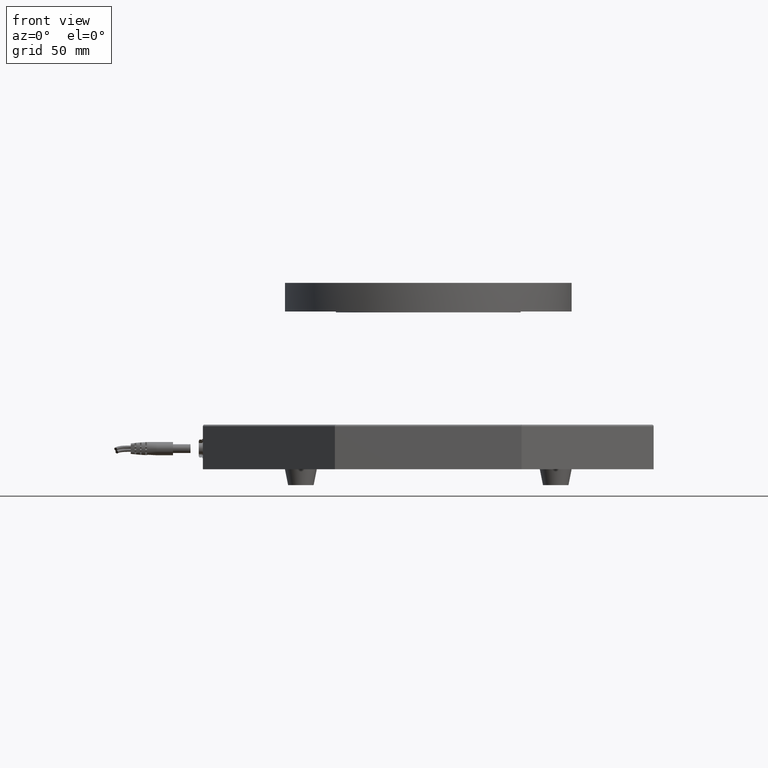
[diagram: clean part render]
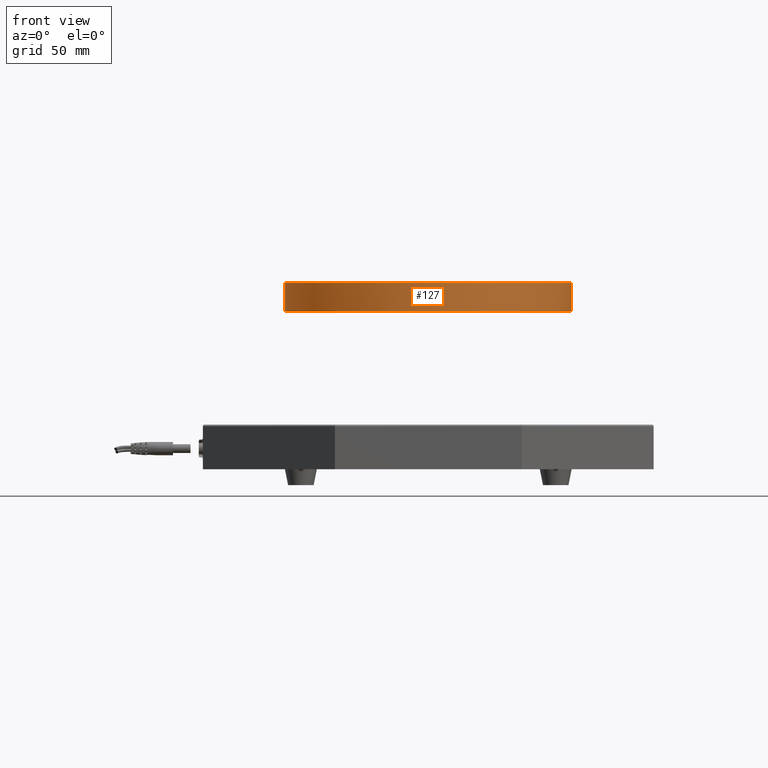
[diagram: same view with one face highlighted and labeled with its STEP entity id]
A machine part, front view. The second image highlights one B-rep face of the part: STEP entity #127.
In plain terms, the highlighted face is a freeform B-spline surface patch.
Its self-contained STEP definition (entity closure, byte-faithful):
#127=ADVANCED_FACE('',(#488),#4664,.T.);
#488=FACE_OUTER_BOUND('',#809,.T.);
#809=EDGE_LOOP('',(#1521,#1522,#1523,#1524));
#1521=ORIENTED_EDGE('',*,*,#2826,.T.);
#1522=ORIENTED_EDGE('',*,*,#2827,.F.);
#1523=ORIENTED_EDGE('',*,*,#2826,.F.);
#1524=ORIENTED_EDGE('',*,*,#2825,.F.);
#2825=EDGE_CURVE('',#4283,#4283,#3927,.T.);
#2826=EDGE_CURVE('',#4283,#4284,#3556,.T.);
#2827=EDGE_CURVE('',#4284,#4284,#3928,.T.);
#3556=B_SPLINE_CURVE_WITH_KNOTS('',1,(#8110,#8111),.UNSPECIFIED.,.F.,.F.,
(2,2),(0.,18.),.UNSPECIFIED.);
#3927=(
BOUNDED_CURVE()
B_SPLINE_CURVE(2,(#8101,#8102,#8103,#8104,#8105,#8106,#8107,#8108,#8109),
 .UNSPECIFIED.,.T.,.F.)
B_SPLINE_CURVE_WITH_KNOTS((3,2,2,2,3),(0.,141.371669411541,282.743338823081,
424.115008234622,565.486677646163),.UNSPECIFIED.)
CURVE()
GEOMETRIC_REPRESENTATION_ITEM()
RATIONAL_B_SPLINE_CURVE((1.,0.707106781186548,1.,0.707106781186548,1.,0.707106781186548,
1.,0.707106781186548,1.))
REPRESENTATION_ITEM('')
);
#3928=(
BOUNDED_CURVE()
B_SPLINE_CURVE(2,(#8112,#8113,#8114,#8115,#8116,#8117,#8118,#8119,#8120),
 .UNSPECIFIED.,.T.,.F.)
B_SPLINE_CURVE_WITH_KNOTS((3,2,2,2,3),(-565.486677646163,-424.115008234622,
-282.743338823081,-141.371669411541,0.),.UNSPECIFIED.)
CURVE()
GEOMETRIC_REPRESENTATION_ITEM()
RATIONAL_B_SPLINE_CURVE((1.,0.707106781186548,1.,0.707106781186548,1.,0.707106781186548,
1.,0.707106781186548,1.))
REPRESENTATION_ITEM('')
);
#4283=VERTEX_POINT('',#8085);
#4284=VERTEX_POINT('',#8086);
#4664=(
BOUNDED_SURFACE()
B_SPLINE_SURFACE(1,2,((#7933,#7934,#7935,#7936,#7937,#7938,#7939,#7940,
#7941),(#7942,#7943,#7944,#7945,#7946,#7947,#7948,#7949,#7950)),
 .UNSPECIFIED.,.F.,.F.,.F.)
B_SPLINE_SURFACE_WITH_KNOTS((2,2),(3,2,2,2,3),(0.,18.),(0.,141.371669411541,
282.743338823081,424.115008234622,565.486677646163),.UNSPECIFIED.)
GEOMETRIC_REPRESENTATION_ITEM()
RATIONAL_B_SPLINE_SURFACE(((1.,0.707106781186548,1.,0.707106781186548,1.,
0.707106781186548,1.,0.707106781186548,1.),(1.,0.707106781186548,1.,0.707106781186548,
1.,0.707106781186548,1.,0.707106781186548,1.)))
REPRESENTATION_ITEM('')
SURFACE()
);
#7933=CARTESIAN_POINT('',(90.,0.,117.));
#7934=CARTESIAN_POINT('',(90.,90.,117.));
#7935=CARTESIAN_POINT('',(5.51091059616309E-15,90.,117.));
#7936=CARTESIAN_POINT('',(-90.,90.,117.));
#7937=CARTESIAN_POINT('',(-90.,1.10218211923262E-14,117.));
#7938=CARTESIAN_POINT('',(-90.,-90.,117.));
#7939=CARTESIAN_POINT('',(-1.65327317884893E-14,-90.,117.));
#7940=CARTESIAN_POINT('',(90.,-90.,117.));
#7941=CARTESIAN_POINT('',(90.,0.,117.));
#7942=CARTESIAN_POINT('',(90.,0.,99.));
#7943=CARTESIAN_POINT('',(90.,90.,99.));
#7944=CARTESIAN_POINT('',(5.51091059616309E-15,90.,99.));
#7945=CARTESIAN_POINT('',(-90.,90.,99.));
#7946=CARTESIAN_POINT('',(-90.,1.10218211923262E-14,99.));
#7947=CARTESIAN_POINT('',(-90.,-90.,99.));
#7948=CARTESIAN_POINT('',(-1.65327317884893E-14,-90.,99.));
#7949=CARTESIAN_POINT('',(90.,-90.,99.));
#7950=CARTESIAN_POINT('',(90.,0.,99.));
#8085=CARTESIAN_POINT('',(90.,0.,117.));
#8086=CARTESIAN_POINT('',(90.,-2.20436423846524E-14,99.));
#8101=CARTESIAN_POINT('',(90.,0.,117.));
#8102=CARTESIAN_POINT('',(90.,90.,117.));
#8103=CARTESIAN_POINT('',(5.51091059616309E-15,90.,117.));
#8104=CARTESIAN_POINT('',(-90.,90.,117.));
#8105=CARTESIAN_POINT('',(-90.,1.10218211923262E-14,117.));
#8106=CARTESIAN_POINT('',(-90.,-90.,117.));
#8107=CARTESIAN_POINT('',(-1.65327317884893E-14,-90.,117.));
#8108=CARTESIAN_POINT('',(90.,-90.,117.));
#8109=CARTESIAN_POINT('',(90.,0.,117.));
#8110=CARTESIAN_POINT('',(90.,0.,117.));
#8111=CARTESIAN_POINT('',(90.,-2.20436423846524E-14,99.));
#8112=CARTESIAN_POINT('',(90.,0.,99.));
#8113=CARTESIAN_POINT('',(90.,-90.,99.));
#8114=CARTESIAN_POINT('',(-1.65327317884893E-14,-90.,99.));
#8115=CARTESIAN_POINT('',(-90.,-90.,99.));
#8116=CARTESIAN_POINT('',(-90.,1.10218211923262E-14,99.));
#8117=CARTESIAN_POINT('',(-90.,90.,99.));
#8118=CARTESIAN_POINT('',(5.51091059616309E-15,90.,99.));
#8119=CARTESIAN_POINT('',(90.,90.,99.));
#8120=CARTESIAN_POINT('',(90.,0.,99.));